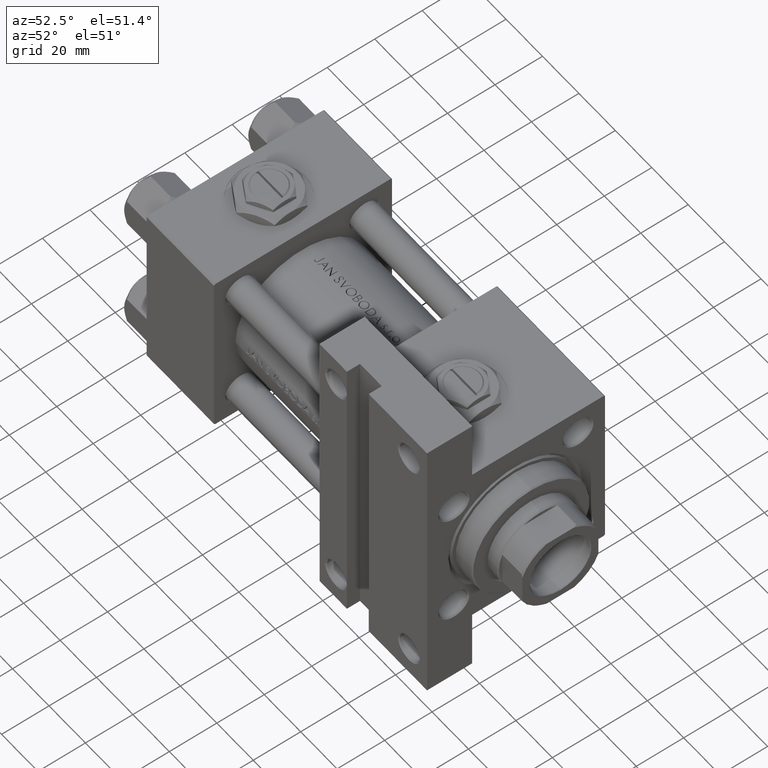
[diagram: clean part render]
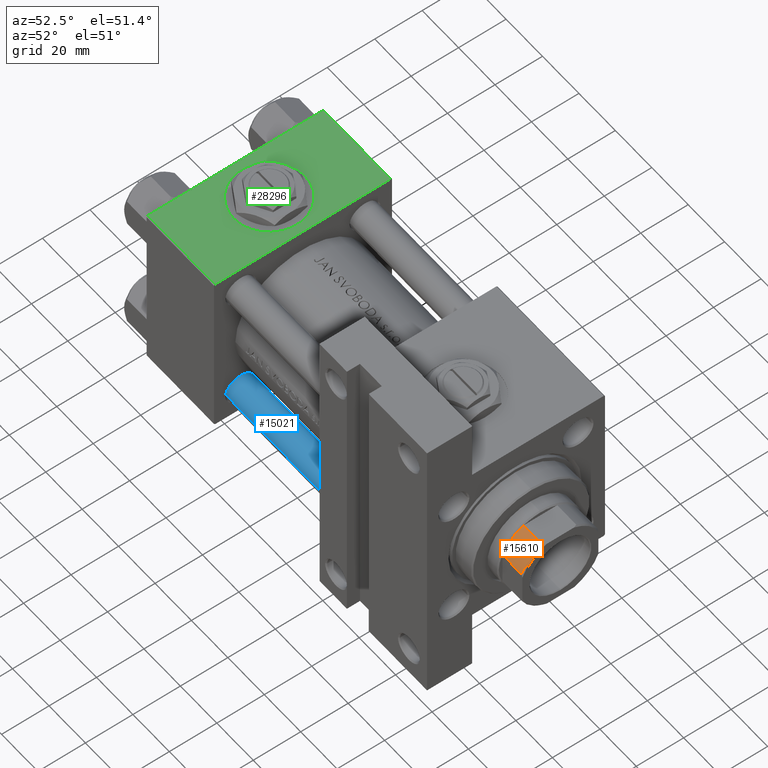
[diagram: same view with three faces highlighted in distinct colors, each labeled with its STEP entity id]
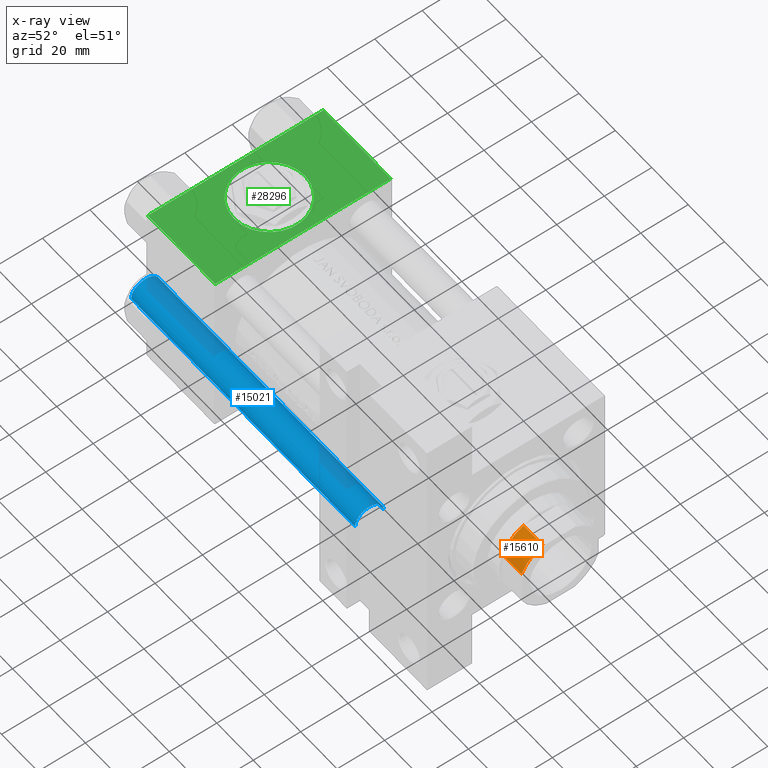
[diagram: x-ray of the same camera — body ghosted, the three highlighted faces saturated]
A machine part, auxiliary view with three faces highlighted in distinct colors.
The next image is the same camera in x-ray (body ghosted, the three faces saturated) — at least one of them is partly hidden behind the body in this view.
Their STEP definitions:

[orange] entity #15610 — the highlighted cylindrical surface (partial cylindrical patch) has radius 17.5 mm, axis along (1, 0, 0).
#824 = LINE ( 'NONE', #15679, #10957 ) ;
#3169 = EDGE_CURVE ( 'NONE', #10868, #24621, #824, .T. ) ;
#5532 = DIRECTION ( 'NONE',  ( -0.000000000000000000, -0.000000000000000000, 1.000000000000000000 ) ) ;
#6573 = ORIENTED_EDGE ( 'NONE', *, *, #23480, .T. ) ;
#8877 = ORIENTED_EDGE ( 'NONE', *, *, #21264, .T. ) ;
#9562 = CARTESIAN_POINT ( 'NONE',  ( 7.088723439378914470, 16.00000000000000000, -0.001000000000001000089 ) ) ;
#9748 = EDGE_CURVE ( 'NONE', #35630, #34917, #39987, .T. ) ;
#10868 = VERTEX_POINT ( 'NONE', #12785 ) ;
#10957 = VECTOR ( 'NONE', #15173, 1000.000000000000000 ) ;
#12785 = CARTESIAN_POINT ( 'NONE',  ( 15.99999999999999645, 7.088723439378923352, 131.0000000000000284 ) ) ;
#15077 = CYLINDRICAL_SURFACE ( 'NONE', #42380, 17.50000000000000000 ) ;
#15173 = DIRECTION ( 'NONE',  ( -0.000000000000000000, -0.000000000000000000, 1.000000000000000000 ) ) ;
#15580 = FACE_OUTER_BOUND ( 'NONE', #24939, .T. ) ;
#15610 = ADVANCED_FACE ( 'NONE', ( #15580 ), #15077, .T. ) ;
#15679 = CARTESIAN_POINT ( 'NONE',  ( 15.99999999999999645, 7.088723439378923352, -0.001000000000001000089 ) ) ;
#19115 = DIRECTION ( 'NONE',  ( -0.000000000000000000, -0.000000000000000000, 1.000000000000000000 ) ) ;
#19423 = CARTESIAN_POINT ( 'NONE',  ( 7.088723439378914470, 16.00000000000000000, 141.5000000000000284 ) ) ;
#20313 = DIRECTION ( 'NONE',  ( 1.000000000000000000, 0.000000000000000000, 0.000000000000000000 ) ) ;
#21264 = EDGE_CURVE ( 'NONE', #10868, #35630, #36911, .T. ) ;
#23480 = EDGE_CURVE ( 'NONE', #34917, #24621, #44276, .T. ) ;
#24621 = VERTEX_POINT ( 'NONE', #45927 ) ;
#24939 = EDGE_LOOP ( 'NONE', ( #35282, #6573, #30376, #8877 ) ) ;
#26388 = DIRECTION ( 'NONE',  ( 1.000000000000000000, 0.000000000000000000, 0.000000000000000000 ) ) ;
#27840 = CARTESIAN_POINT ( 'NONE',  ( 0.000000000000000000, 0.000000000000000000, 141.5000000000000284 ) ) ;
#28347 = DIRECTION ( 'NONE',  ( 0.000000000000000000, 0.000000000000000000, 1.000000000000000000 ) ) ;
#28596 = CARTESIAN_POINT ( 'NONE',  ( 0.000000000000000000, 0.000000000000000000, 131.0000000000000000 ) ) ;
#30376 = ORIENTED_EDGE ( 'NONE', *, *, #3169, .F. ) ;
#30518 = AXIS2_PLACEMENT_3D ( 'NONE', #28596, #28347, #20313 ) ;
#34917 = VERTEX_POINT ( 'NONE', #19423 ) ;
#35282 = ORIENTED_EDGE ( 'NONE', *, *, #9748, .T. ) ;
#35630 = VERTEX_POINT ( 'NONE', #40359 ) ;
#36911 = CIRCLE ( 'NONE', #30518, 17.50000000000003908 ) ;
#37698 = CARTESIAN_POINT ( 'NONE',  ( 0.000000000000000000, 0.000000000000000000, -0.001000000000001000089 ) ) ;
#37799 = VECTOR ( 'NONE', #5532, 1000.000000000000000 ) ;
#39162 = DIRECTION ( 'NONE',  ( 1.000000000000000000, -5.329070518200752183E-15, 0.000000000000000000 ) ) ;
#39987 = LINE ( 'NONE', #9562, #37799 ) ;
#40260 = AXIS2_PLACEMENT_3D ( 'NONE', #27840, #46947, #39162 ) ;
#40359 = CARTESIAN_POINT ( 'NONE',  ( 7.088723439378916247, 16.00000000000000355, 131.0000000000000284 ) ) ;
#42380 = AXIS2_PLACEMENT_3D ( 'NONE', #37698, #19115, #26388 ) ;
#44276 = CIRCLE ( 'NONE', #40260, 17.50000000000000000 ) ;
#45927 = CARTESIAN_POINT ( 'NONE',  ( 15.99999999999999645, 7.088723439378923352, 141.5000000000000284 ) ) ;
#46947 = DIRECTION ( 'NONE',  ( -0.000000000000000000, -0.000000000000000000, -1.000000000000000000 ) ) ;

[blue] entity #15021 — the highlighted cylindrical surface (edge-blend (fillet) strip) has radius 6 mm, axis along (1, 0, 0).
#396 = DIRECTION ( 'NONE',  ( -0.000000000000000000, -0.000000000000000000, 1.000000000000000000 ) ) ;
#953 = LINE ( 'NONE', #38182, #26044 ) ;
#3203 = DIRECTION ( 'NONE',  ( -0.000000000000000000, -0.000000000000000000, -1.000000000000000000 ) ) ;
#4872 = DIRECTION ( 'NONE',  ( 0.000000000000000000, 0.000000000000000000, -1.000000000000000000 ) ) ;
#6215 = VERTEX_POINT ( 'NONE', #22895 ) ;
#6245 = LINE ( 'NONE', #29403, #46180 ) ;
#6951 = FACE_OUTER_BOUND ( 'NONE', #46419, .T. ) ;
#7182 = CIRCLE ( 'NONE', #9590, 6.000000000000000888 ) ;
#7969 = ORIENTED_EDGE ( 'NONE', *, *, #49588, .T. ) ;
#8981 = CARTESIAN_POINT ( 'NONE',  ( 6.000000000000000888, 7.347880794884120722E-16, 123.5000000000000426 ) ) ;
#9590 = AXIS2_PLACEMENT_3D ( 'NONE', #20232, #4872, #35551 ) ;
#11248 = CYLINDRICAL_SURFACE ( 'NONE', #39144, 6.000000000000000888 ) ;
#13809 = DIRECTION ( 'NONE',  ( -0.000000000000000000, -0.000000000000000000, -1.000000000000000000 ) ) ;
#15021 = ADVANCED_FACE ( 'NONE', ( #6951 ), #11248, .T. ) ;
#18051 = VERTEX_POINT ( 'NONE', #18647 ) ;
#18647 = CARTESIAN_POINT ( 'NONE',  ( -6.000000000000000888, 0.000000000000000000, 123.5000000000000426 ) ) ;
#20232 = CARTESIAN_POINT ( 'NONE',  ( 0.000000000000000000, 0.000000000000000000, 123.5000000000000426 ) ) ;
#21811 = CARTESIAN_POINT ( 'NONE',  ( 0.000000000000000000, 0.000000000000000000, 124.0000000000000000 ) ) ;
#22302 = DIRECTION ( 'NONE',  ( -1.000000000000000000, 0.000000000000000000, 0.000000000000000000 ) ) ;
#22895 = CARTESIAN_POINT ( 'NONE',  ( 6.000000000000000888, 7.347880794884120722E-16, 0.4999999999999865663 ) ) ;
#24115 = AXIS2_PLACEMENT_3D ( 'NONE', #24232, #396, #47356 ) ;
#24232 = CARTESIAN_POINT ( 'NONE',  ( 0.000000000000000000, 0.000000000000000000, 0.4999999999999865663 ) ) ;
#26044 = VECTOR ( 'NONE', #34897, 1000.000000000000000 ) ;
#29403 = CARTESIAN_POINT ( 'NONE',  ( -6.000000000000000888, 0.000000000000000000, 124.0000000000000000 ) ) ;
#30311 = VERTEX_POINT ( 'NONE', #38150 ) ;
#34322 = EDGE_CURVE ( 'NONE', #35396, #6215, #953, .T. ) ;
#34897 = DIRECTION ( 'NONE',  ( -0.000000000000000000, -0.000000000000000000, -1.000000000000000000 ) ) ;
#35147 = ORIENTED_EDGE ( 'NONE', *, *, #37101, .F. ) ;
#35396 = VERTEX_POINT ( 'NONE', #8981 ) ;
#35551 = DIRECTION ( 'NONE',  ( 1.000000000000000000, 0.000000000000000000, 0.000000000000000000 ) ) ;
#37101 = EDGE_CURVE ( 'NONE', #18051, #30311, #6245, .T. ) ;
#38150 = CARTESIAN_POINT ( 'NONE',  ( -6.000000000000000888, 0.000000000000000000, 0.4999999999999865663 ) ) ;
#38182 = CARTESIAN_POINT ( 'NONE',  ( 6.000000000000000888, 7.347880794884120722E-16, 124.0000000000000000 ) ) ;
#39144 = AXIS2_PLACEMENT_3D ( 'NONE', #21811, #3203, #22302 ) ;
#41400 = ORIENTED_EDGE ( 'NONE', *, *, #34322, .T. ) ;
#44358 = EDGE_CURVE ( 'NONE', #18051, #35396, #7182, .T. ) ;
#45817 = CIRCLE ( 'NONE', #24115, 6.000000000000000888 ) ;
#46180 = VECTOR ( 'NONE', #13809, 1000.000000000000000 ) ;
#46419 = EDGE_LOOP ( 'NONE', ( #49007, #41400, #7969, #35147 ) ) ;
#47356 = DIRECTION ( 'NONE',  ( 1.000000000000000000, 0.000000000000000000, 0.000000000000000000 ) ) ;
#49007 = ORIENTED_EDGE ( 'NONE', *, *, #44358, .T. ) ;
#49588 = EDGE_CURVE ( 'NONE', #6215, #30311, #45817, .T. ) ;

[green] entity #28296 — the highlighted planar face has unit normal (0, 0, -1).
#591 = EDGE_LOOP ( 'NONE', ( #42025, #14351 ) ) ;
#1117 = DIRECTION ( 'NONE',  ( 0.000000000000000000, 0.000000000000000000, -1.000000000000000000 ) ) ;
#1642 = DIRECTION ( 'NONE',  ( 0.000000000000000000, -1.000000000000000000, -8.673617379884036705E-17 ) ) ;
#1907 = DIRECTION ( 'NONE',  ( -0.000000000000000000, 1.000000000000000000, 9.251858538542971581E-17 ) ) ;
#2507 = CARTESIAN_POINT ( 'NONE',  ( 0.000000000000000000, -37.50000000000000711, 36.99999999999999289 ) ) ;
#4030 = ORIENTED_EDGE ( 'NONE', *, *, #39697, .T. ) ;
#5750 = AXIS2_PLACEMENT_3D ( 'NONE', #31833, #1907, #13467 ) ;
#6335 = CIRCLE ( 'NONE', #40869, 15.00000000000000178 ) ;
#6394 = DIRECTION ( 'NONE',  ( 0.000000000000000000, 0.000000000000000000, -1.000000000000000000 ) ) ;
#8894 = CARTESIAN_POINT ( 'NONE',  ( 18.50000000000000000, -37.50000000000000711, -3.469446951953614978E-15 ) ) ;
#8944 = PLANE ( 'NONE',  #5750 ) ;
#8950 = LINE ( 'NONE', #24037, #46750 ) ;
#11984 = LINE ( 'NONE', #28234, #38428 ) ;
#12507 = CARTESIAN_POINT ( 'NONE',  ( 18.50000000000000000, -37.50000000000000711, -15.00000000000000533 ) ) ;
#12746 = CARTESIAN_POINT ( 'NONE',  ( 0.000000000000000000, -37.50000000000000000, -37.00000000000003553 ) ) ;
#13017 = ORIENTED_EDGE ( 'NONE', *, *, #29153, .F. ) ;
#13285 = ORIENTED_EDGE ( 'NONE', *, *, #14682, .T. ) ;
#13316 = CARTESIAN_POINT ( 'NONE',  ( 37.00000000000000000, -37.50000000000000711, 36.99999999999999289 ) ) ;
#13467 = DIRECTION ( 'NONE',  ( 0.000000000000000000, -9.251858538542971581E-17, 1.000000000000000000 ) ) ;
#14351 = ORIENTED_EDGE ( 'NONE', *, *, #18702, .F. ) ;
#14682 = EDGE_CURVE ( 'NONE', #34259, #38135, #26382, .T. ) ;
#18702 = EDGE_CURVE ( 'NONE', #47043, #42286, #6335, .T. ) ;
#20285 = DIRECTION ( 'NONE',  ( 0.000000000000000000, 9.251858538542971581E-17, -1.000000000000000000 ) ) ;
#20866 = LINE ( 'NONE', #13316, #42921 ) ;
#21270 = CARTESIAN_POINT ( 'NONE',  ( 37.00000000000000000, -37.50000000000000711, 36.99999999999999289 ) ) ;
#21559 = EDGE_LOOP ( 'NONE', ( #13285, #32179, #13017, #4030 ) ) ;
#22126 = CARTESIAN_POINT ( 'NONE',  ( 18.50000000000000355, -37.50000000000000711, 14.99999999999999822 ) ) ;
#23646 = DIRECTION ( 'NONE',  ( -1.000000000000000000, 0.000000000000000000, 0.000000000000000000 ) ) ;
#24037 = CARTESIAN_POINT ( 'NONE',  ( 37.00000000000000000, -37.50000000000000711, 37.49999999999999289 ) ) ;
#26382 = LINE ( 'NONE', #30165, #47142 ) ;
#27394 = VERTEX_POINT ( 'NONE', #36119 ) ;
#28234 = CARTESIAN_POINT ( 'NONE',  ( 37.00000000000000000, -37.50000000000000000, -37.00000000000003553 ) ) ;
#28296 = ADVANCED_FACE ( 'NONE', ( #47906, #46920 ), #8944, .F. ) ;
#28485 = DIRECTION ( 'NONE',  ( 1.000000000000000000, 0.000000000000000000, 0.000000000000000000 ) ) ;
#29153 = EDGE_CURVE ( 'NONE', #30532, #27394, #8950, .T. ) ;
#29677 = AXIS2_PLACEMENT_3D ( 'NONE', #32303, #1642, #6394 ) ;
#30165 = CARTESIAN_POINT ( 'NONE',  ( 0.000000000000000000, -37.50000000000000711, 37.49999999999999289 ) ) ;
#30532 = VERTEX_POINT ( 'NONE', #21270 ) ;
#31833 = CARTESIAN_POINT ( 'NONE',  ( 37.00000000000000000, -37.50000000000000711, 37.49999999999999289 ) ) ;
#32179 = ORIENTED_EDGE ( 'NONE', *, *, #41120, .T. ) ;
#32303 = CARTESIAN_POINT ( 'NONE',  ( 18.50000000000000000, -37.50000000000000711, -3.469446951953614978E-15 ) ) ;
#34259 = VERTEX_POINT ( 'NONE', #2507 ) ;
#36119 = CARTESIAN_POINT ( 'NONE',  ( 37.00000000000000000, -37.50000000000000000, -37.00000000000003553 ) ) ;
#38135 = VERTEX_POINT ( 'NONE', #12746 ) ;
#38428 = VECTOR ( 'NONE', #28485, 1000.000000000000000 ) ;
#39697 = EDGE_CURVE ( 'NONE', #30532, #34259, #20866, .T. ) ;
#40869 = AXIS2_PLACEMENT_3D ( 'NONE', #8894, #46389, #1117 ) ;
#41120 = EDGE_CURVE ( 'NONE', #38135, #27394, #11984, .T. ) ;
#41468 = DIRECTION ( 'NONE',  ( 0.000000000000000000, 9.251858538542971581E-17, -1.000000000000000000 ) ) ;
#42025 = ORIENTED_EDGE ( 'NONE', *, *, #43438, .F. ) ;
#42286 = VERTEX_POINT ( 'NONE', #12507 ) ;
#42515 = CIRCLE ( 'NONE', #29677, 15.00000000000000178 ) ;
#42921 = VECTOR ( 'NONE', #23646, 1000.000000000000000 ) ;
#43438 = EDGE_CURVE ( 'NONE', #42286, #47043, #42515, .T. ) ;
#46389 = DIRECTION ( 'NONE',  ( 0.000000000000000000, -1.000000000000000000, -8.673617379884036705E-17 ) ) ;
#46750 = VECTOR ( 'NONE', #20285, 1000.000000000000000 ) ;
#46920 = FACE_OUTER_BOUND ( 'NONE', #21559, .T. ) ;
#47043 = VERTEX_POINT ( 'NONE', #22126 ) ;
#47142 = VECTOR ( 'NONE', #41468, 1000.000000000000000 ) ;
#47906 = FACE_BOUND ( 'NONE', #591, .T. ) ;